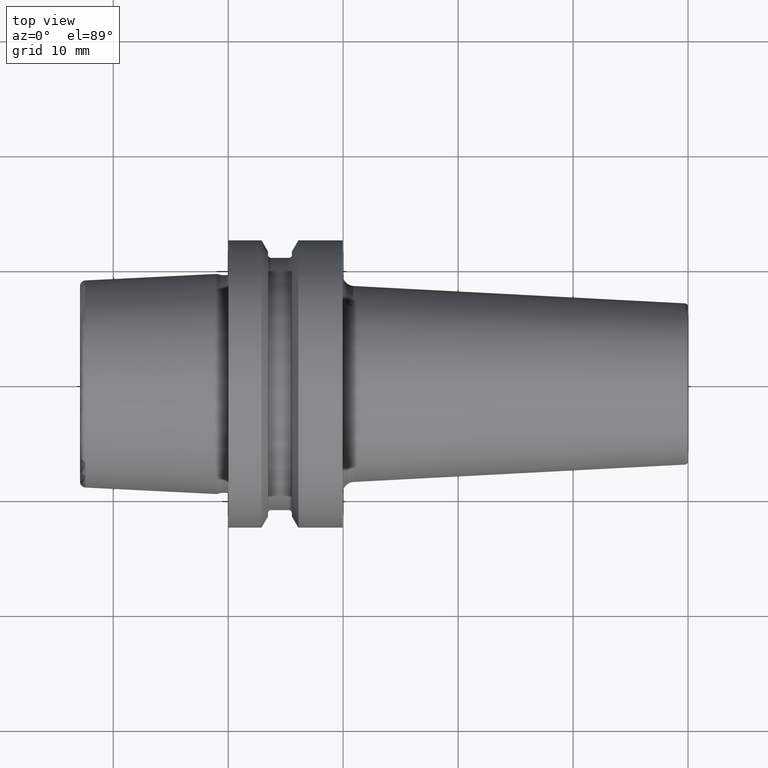
[diagram: clean part render]
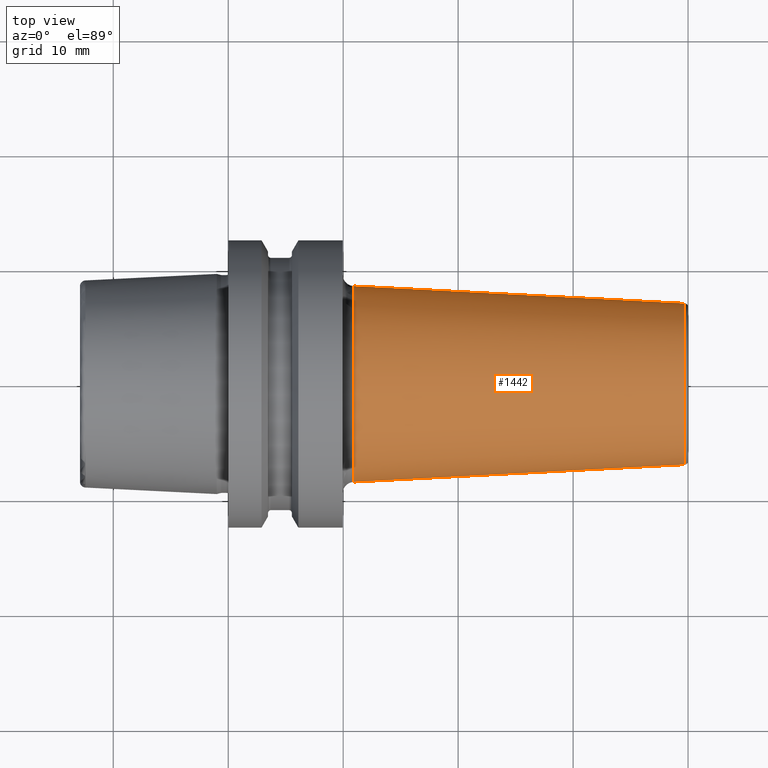
[diagram: same view with one face highlighted and labeled with its STEP entity id]
A machine part, top view. The second image highlights one B-rep face of the part: STEP entity #1442.
In plain terms, the highlighted conical surface has half-angle 3 deg.
Its self-contained STEP definition (entity closure, byte-faithful):
#484=CARTESIAN_POINT('',(3.971570078687E1,0.E0,0.E0));
#485=DIRECTION('',(-1.E0,0.E0,0.E0));
#486=DIRECTION('',(0.E0,-1.E0,0.E0));
#487=AXIS2_PLACEMENT_3D('',#484,#485,#486);
#489=CARTESIAN_POINT('',(1.089766404376E1,0.E0,0.E0));
#490=DIRECTION('',(1.E0,0.E0,0.E0));
#491=DIRECTION('',(0.E0,1.E0,0.E0));
#492=AXIS2_PLACEMENT_3D('',#489,#490,#491);
#509=DIRECTION('',(-9.986295347546E-1,5.233595624294E-2,8.985316992872E-14));
#510=VECTOR('',#509,2.885758506051E1);
#511=CARTESIAN_POINT('',(3.971570078687E1,7.014899490412E0,
-1.531941028752E-13));
#512=LINE('',#511,#510);
#518=DIRECTION('',(-9.986295347546E-1,-5.233595624294E-2,-8.985477081802E-14));
#519=VECTOR('',#518,2.885758506051E1);
#520=CARTESIAN_POINT('',(3.971570078687E1,-7.014899490412E0,
1.529820885634E-13));
#521=LINE('',#520,#519);
#672=CARTESIAN_POINT('',(1.089766404376E1,-8.525188799416E0,0.E0));
#673=CARTESIAN_POINT('',(1.089766404376E1,8.525188799416E0,0.E0));
#674=VERTEX_POINT('',#672);
#675=VERTEX_POINT('',#673);
#676=CARTESIAN_POINT('',(3.971570078687E1,7.014899490412E0,0.E0));
#677=CARTESIAN_POINT('',(3.971570078687E1,-7.014899490412E0,0.E0));
#678=VERTEX_POINT('',#676);
#679=VERTEX_POINT('',#677);
#1428=CARTESIAN_POINT('',(2.530668241531E1,0.E0,0.E0));
#1429=DIRECTION('',(-1.E0,0.E0,0.E0));
#1430=DIRECTION('',(0.E0,1.E0,0.E0));
#1431=AXIS2_PLACEMENT_3D('',#1428,#1429,#1430);
#1432=CONICAL_SURFACE('',#1431,7.770044144914E0,3.E0);
#1434=ORIENTED_EDGE('',*,*,#1433,.F.);
#1436=ORIENTED_EDGE('',*,*,#1435,.T.);
#1437=ORIENTED_EDGE('',*,*,#1422,.F.);
#1439=ORIENTED_EDGE('',*,*,#1438,.F.);
#1440=EDGE_LOOP('',(#1434,#1436,#1437,#1439));
#1441=FACE_OUTER_BOUND('',#1440,.F.);
#1442=ADVANCED_FACE('',(#1441),#1432,.T.);
#488=CIRCLE('',#487,7.014899490412E0);
#493=CIRCLE('',#492,8.525188799416E0);
#1422=EDGE_CURVE('',#675,#674,#493,.T.);
#1433=EDGE_CURVE('',#679,#678,#488,.T.);
#1435=EDGE_CURVE('',#679,#674,#521,.T.);
#1438=EDGE_CURVE('',#678,#675,#512,.T.);